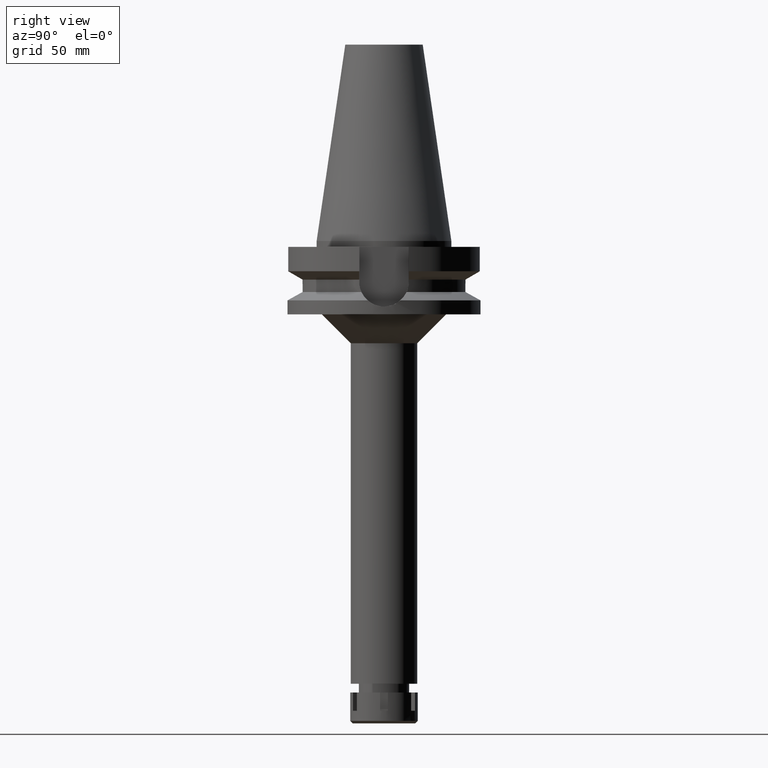
[diagram: clean part render]
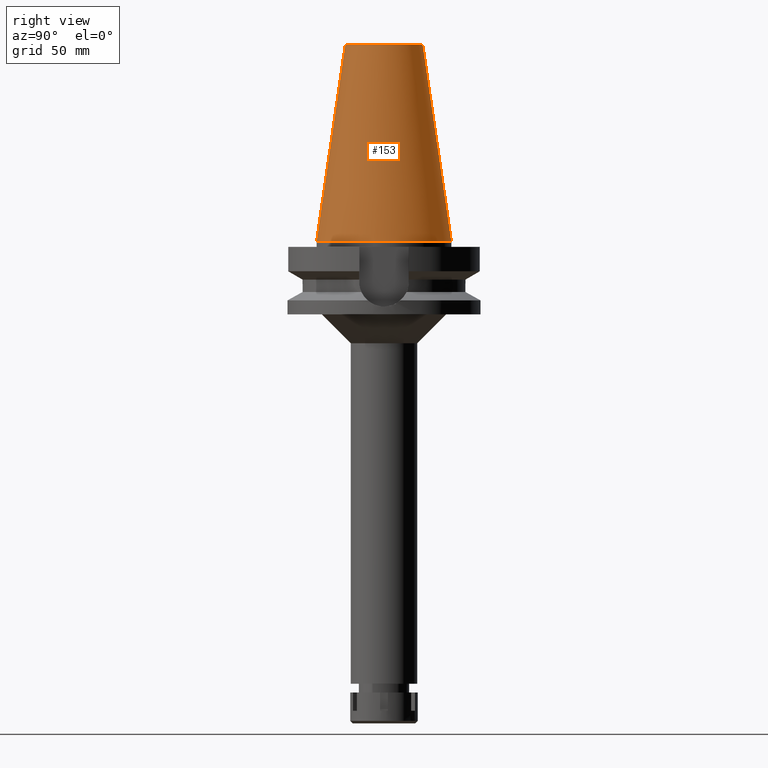
[diagram: same view with one face highlighted and labeled with its STEP entity id]
A machine part, right view. The second image highlights one B-rep face of the part: STEP entity #153.
In plain terms, the highlighted conical surface has half-angle 8.297 deg.
Its self-contained STEP definition (entity closure, byte-faithful):
#53 = EDGE_CURVE ( 'NONE', #2442, #1330, #2823, .T. ) ;
#143 = EDGE_CURVE ( 'NONE', #3196, #1330, #2202, .T. ) ;
#153 = ADVANCED_FACE ( 'NONE', ( #1355 ), #2174, .T. ) ;
#515 = DIRECTION ( 'NONE',  ( 0.0000000000000000000, 0.0000000000000000000, -1.000000000000000000 ) ) ;
#558 = VECTOR ( 'NONE', #3116, 1000.000000000000114 ) ;
#671 = DIRECTION ( 'NONE',  ( 0.0000000000000000000, 0.1443043893538948075, -0.9895333461855641000 ) ) ;
#775 = AXIS2_PLACEMENT_3D ( 'NONE', #2485, #2463, #1661 ) ;
#952 = ORIENTED_EDGE ( 'NONE', *, *, #143, .T. ) ;
#1051 = ORIENTED_EDGE ( 'NONE', *, *, #53, .F. ) ;
#1082 = EDGE_CURVE ( 'NONE', #2543, #2442, #1162, .T. ) ;
#1162 = LINE ( 'NONE', #3168, #2270 ) ;
#1330 = VERTEX_POINT ( 'NONE', #3360 ) ;
#1355 = FACE_OUTER_BOUND ( 'NONE', #2706, .T. ) ;
#1364 = DIRECTION ( 'NONE',  ( 0.0000000000000000000, 1.000000000000000000, 0.0000000000000000000 ) ) ;
#1372 = AXIS2_PLACEMENT_3D ( 'NONE', #2065, #515, #1364 ) ;
#1396 = CARTESIAN_POINT ( 'NONE',  ( 0.0000000000000000000, -20.07942971896000017, 101.7999999999999972 ) ) ;
#1460 = ORIENTED_EDGE ( 'NONE', *, *, #2173, .T. ) ;
#1527 = CARTESIAN_POINT ( 'NONE',  ( 0.0000000000000000000, 20.07942971896000017, 101.7999999999999972 ) ) ;
#1550 = ORIENTED_EDGE ( 'NONE', *, *, #1082, .F. ) ;
#1661 = DIRECTION ( 'NONE',  ( 0.0000000000000000000, 1.000000000000000000, 0.0000000000000000000 ) ) ;
#1835 = CARTESIAN_POINT ( 'NONE',  ( 0.0000000000000000000, 34.92499999999999716, 5.400124791776999712E-13 ) ) ;
#1879 = CARTESIAN_POINT ( 'NONE',  ( 0.0000000000000000000, -20.07942971896000017, 101.7999999999999972 ) ) ;
#2065 = CARTESIAN_POINT ( 'NONE',  ( 0.0000000000000000000, 1.847992019912999597E-14, 3.979039320256999774E-13 ) ) ;
#2173 = EDGE_CURVE ( 'NONE', #2543, #3196, #3279, .T. ) ;
#2174 = CONICAL_SURFACE ( 'NONE', #2286, 27.50221485948000222, 0.1448099680379422438 ) ;
#2202 = LINE ( 'NONE', #1396, #558 ) ;
#2270 = VECTOR ( 'NONE', #671, 1000.000000000000114 ) ;
#2286 = AXIS2_PLACEMENT_3D ( 'NONE', #2973, #2424, #2460 ) ;
#2424 = DIRECTION ( 'NONE',  ( 0.0000000000000000000, 0.0000000000000000000, -1.000000000000000000 ) ) ;
#2442 = VERTEX_POINT ( 'NONE', #1835 ) ;
#2460 = DIRECTION ( 'NONE',  ( 0.0000000000000000000, -1.000000000000000000, 0.0000000000000000000 ) ) ;
#2463 = DIRECTION ( 'NONE',  ( 0.0000000000000000000, 0.0000000000000000000, -1.000000000000000000 ) ) ;
#2485 = CARTESIAN_POINT ( 'NONE',  ( 0.0000000000000000000, 1.847992019912999597E-14, 101.7999999999999972 ) ) ;
#2543 = VERTEX_POINT ( 'NONE', #1527 ) ;
#2706 = EDGE_LOOP ( 'NONE', ( #1460, #952, #1051, #1550 ) ) ;
#2823 = CIRCLE ( 'NONE', #1372, 34.92499999999999716 ) ;
#2973 = CARTESIAN_POINT ( 'NONE',  ( 0.0000000000000000000, 1.847992019912999597E-14, 50.89999999999999858 ) ) ;
#3116 = DIRECTION ( 'NONE',  ( 0.0000000000000000000, -0.1443043893538948075, -0.9895333461855641000 ) ) ;
#3168 = CARTESIAN_POINT ( 'NONE',  ( 0.0000000000000000000, 20.07942971896000017, 101.7999999999999972 ) ) ;
#3196 = VERTEX_POINT ( 'NONE', #1879 ) ;
#3279 = CIRCLE ( 'NONE', #775, 20.07942971896000017 ) ;
#3360 = CARTESIAN_POINT ( 'NONE',  ( 0.0000000000000000000, -34.92499999999999716, 3.979039320256999774E-13 ) ) ;